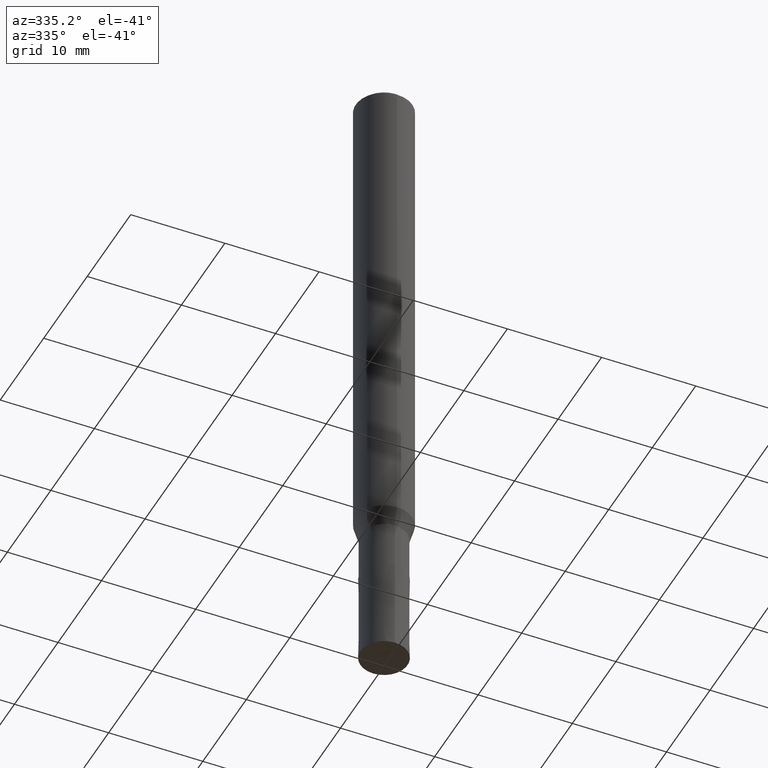
[diagram: clean part render]
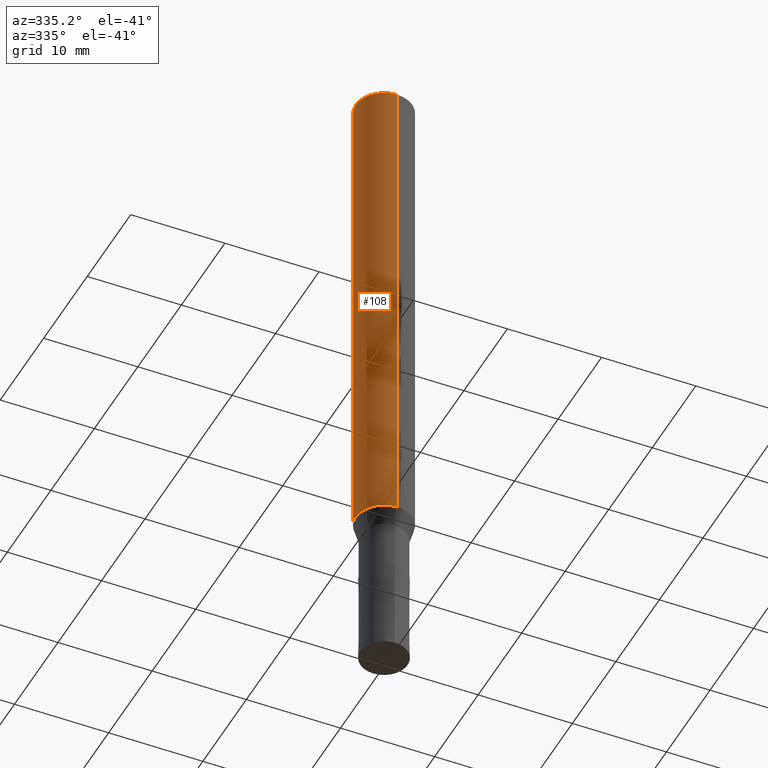
[diagram: same view with one face highlighted and labeled with its STEP entity id]
A machine part, auxiliary view. The second image highlights one B-rep face of the part: STEP entity #108.
In plain terms, the highlighted cylindrical surface (edge-blend (fillet) strip) has radius 3 mm, axis along (-0, -0, 1).
Its self-contained STEP definition (entity closure, byte-faithful):
#108=ADVANCED_FACE('',(#246),#247,.T.);
#112=EDGE_CURVE('',#190,#132,#251,.T.);
#132=VERTEX_POINT('',#275);
#140=EDGE_CURVE('',#166,#168,#284,.T.);
#166=VERTEX_POINT('',#313);
#168=VERTEX_POINT('',#315);
#190=VERTEX_POINT('',#341);
#192=EDGE_CURVE('',#168,#190,#343,.T.);
#198=EDGE_CURVE('',#166,#132,#349,.T.);
#246=FACE_OUTER_BOUND('',#396,.T.);
#247=CYLINDRICAL_SURFACE('',#397,3.0);
#251=LINE('',#402,#403);
#275=CARTESIAN_POINT('',(0.0,3.0,-53.082));
#284=LINE('',#440,#441);
#313=CARTESIAN_POINT('',(3.67381906146713E-016,-3.0,-53.082));
#315=CARTESIAN_POINT('',(3.67381906146713E-016,-3.0,-0.399999999999999));
#341=CARTESIAN_POINT('',(0.0,3.0,-0.399999999999999));
#343=CIRCLE('',#515,3.0);
#349=CIRCLE('',#526,3.0);
#396=EDGE_LOOP('',(#566,#567,#568,#569));
#397=AXIS2_PLACEMENT_3D('',#570,#571,#572);
#402=CARTESIAN_POINT('',(-3.67381906146713E-016,3.0,-26.741));
#403=VECTOR('',#573,1.0);
#440=CARTESIAN_POINT('',(3.67381906146713E-016,-3.0,-26.741));
#441=VECTOR('',#617,1.0);
#515=AXIS2_PLACEMENT_3D('',#687,#688,#689);
#526=AXIS2_PLACEMENT_3D('',#692,#693,#694);
#566=ORIENTED_EDGE('',*,*,#112,.T.);
#567=ORIENTED_EDGE('',*,*,#198,.F.);
#568=ORIENTED_EDGE('',*,*,#140,.T.);
#569=ORIENTED_EDGE('',*,*,#192,.T.);
#570=CARTESIAN_POINT('',(0.0,0.0,-26.741));
#571=DIRECTION('',(-0.0,-0.0,1.0));
#572=DIRECTION('',(0.0,1.0,0.0));
#573=DIRECTION('',(0.0,0.0,-1.0));
#617=DIRECTION('',(-0.0,-0.0,1.0));
#687=CARTESIAN_POINT('',(0.0,0.0,-0.399999999999999));
#688=DIRECTION('',(0.0,0.0,-1.0));
#689=DIRECTION('',(0.0,1.0,0.0));
#692=CARTESIAN_POINT('',(0.0,0.0,-53.082));
#693=DIRECTION('',(0.0,0.0,-1.0));
#694=DIRECTION('',(0.0,1.0,0.0));